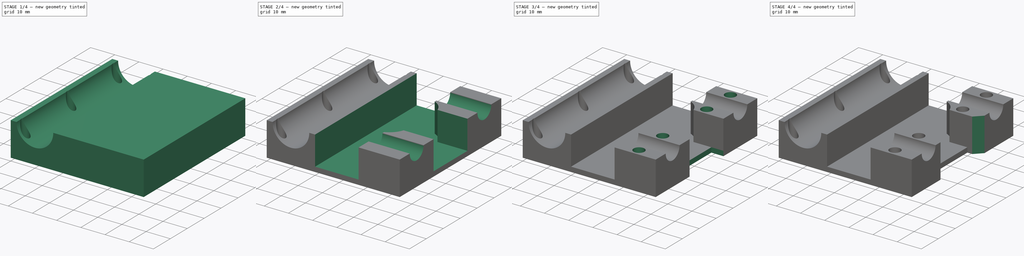
[diagram: build sequence overview — one tinted view per stage of 4, left to right]
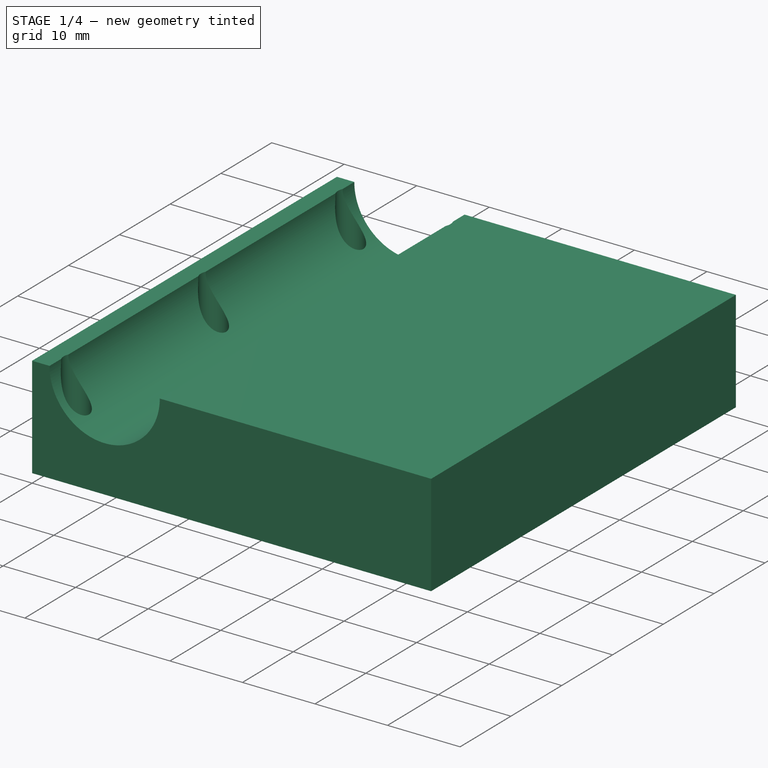
[diagram: stage 1 of 4 — iso view after this stage's code; geometry added in this stage tinted green]
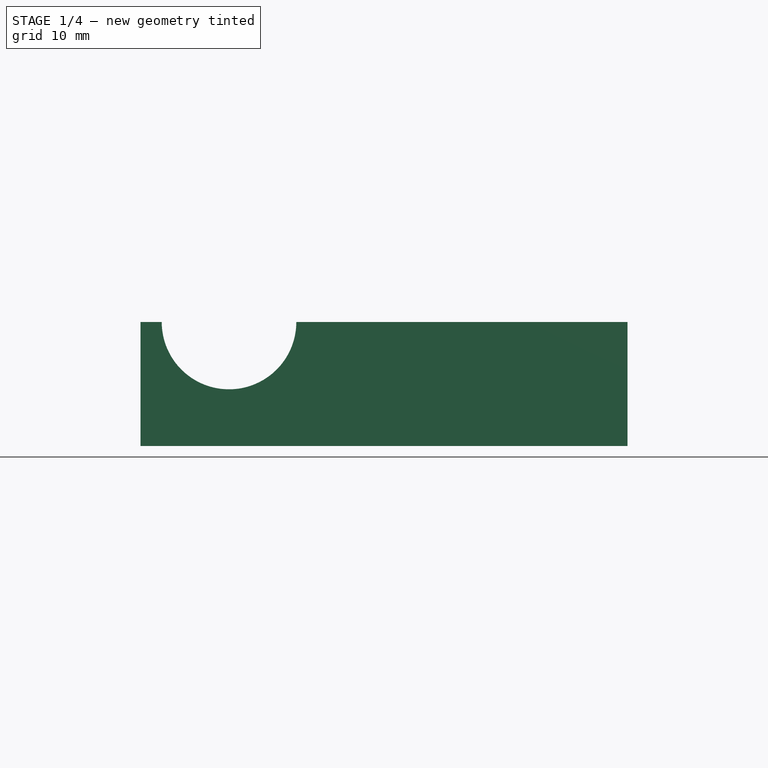
[diagram: stage 1 of 4 — front view after this stage's code; geometry added in this stage tinted green]
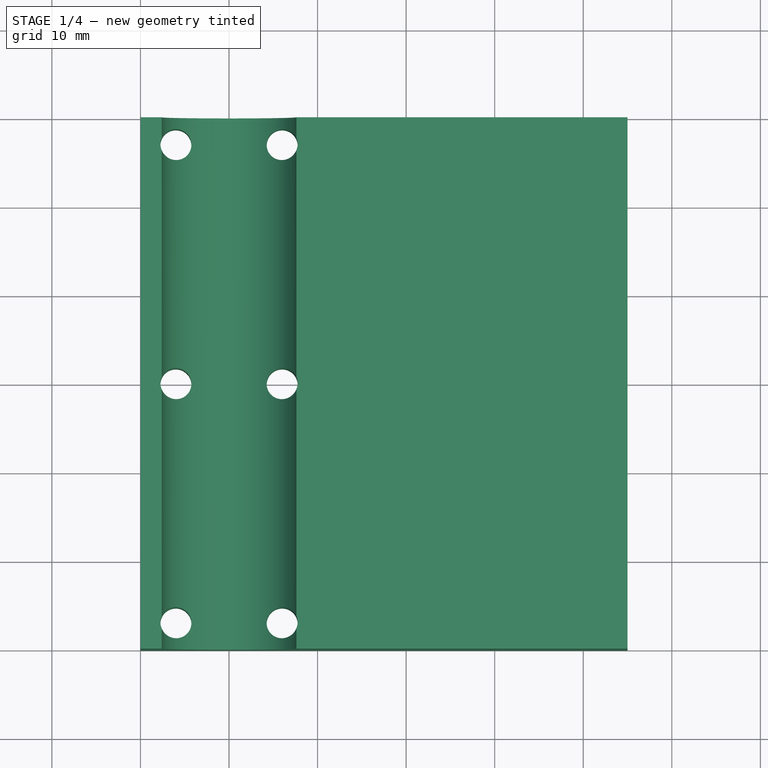
[diagram: stage 1 of 4 — top view after this stage's code; geometry added in this stage tinted green]
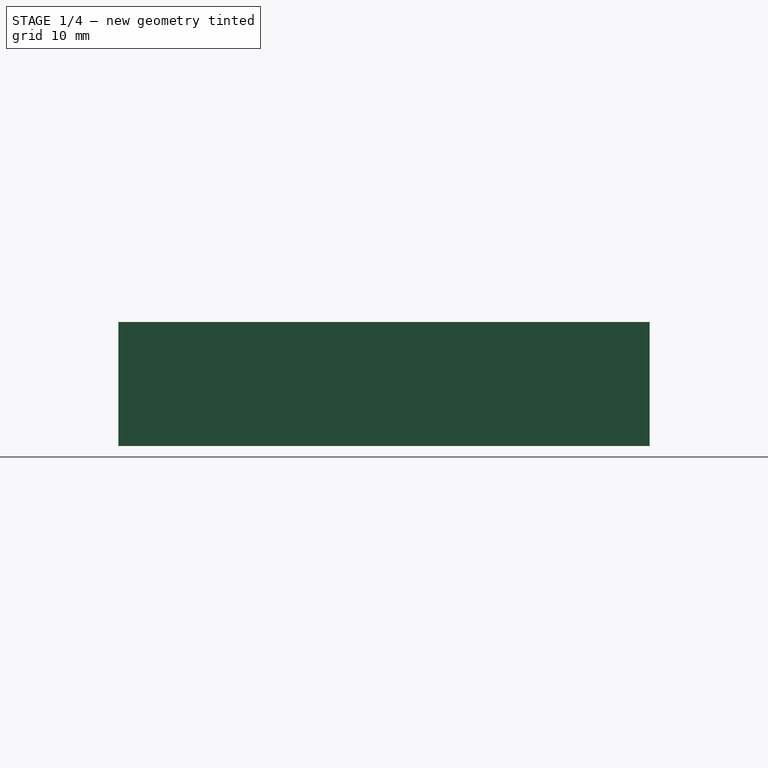
[diagram: stage 1 of 4 — right view after this stage's code; geometry added in this stage tinted green]
FCSTD DOCUMENT  (FreeCAD 0.15R4477 (Git))
Label: XY-block
License: CC-BY 3.0
LicenseURL: http://creativecommons.org/licenses/by/3.0/
objects: Sketcher::SketchObject×9, PartDesign::Pocket×8, PartDesign::Chamfer×2, PartDesign::Pad×1
note: 29 computed .brp shape members not serialized (recipe doc carries the construction recipe); baked Part::Feature solids carry a one-line shape summary decoded from their .brp

FEATURE [Sketcher::SketchObject] Sketch
  sketch-geometry (4):
    g0: LineSegment StartX=-10 StartY=-30 StartZ=0 EndX=45 EndY=-30 EndZ=0
    g1: LineSegment StartX=45 StartY=-30 StartZ=0 EndX=45 EndY=30 EndZ=0
    g2: LineSegment StartX=45 StartY=30 StartZ=0 EndX=-10 EndY=30 EndZ=0
    g3: LineSegment StartX=-10 StartY=30 StartZ=0 EndX=-10 EndY=-30 EndZ=0
  constraints (12):
    c: Coincident(g0,g1)
    c: Coincident(g1,g2)
    c: Coincident(g2,g3)
    c: Coincident(g3,g0)
    c: Horizontal(g0)
    c: Horizontal(g2)
    c: Vertical(g1)
    c: Vertical(g3)
    c: DistanceX(g0) = 55
    c: DistanceY(g1) = 60
    c: DistanceX(g0) = -10
    c: DistanceY(g0) = -30
FEATURE [PartDesign::Pad] Pad
  Length = 14
  Length2 = 100
  Sketch = -> Sketch
  Type = 0
FEATURE [Sketcher::SketchObject] Sketch001
  Placement = pos=(0,-30,0) rot=(1,0,0;1.5708rad)
  Support = -> Pad [Face1]
  sketch-geometry (1):
    g0: Circle CenterX=0 CenterY=14 CenterZ=0 NormalX=0 NormalY=0 NormalZ=1 Radius=7.6
  constraints (3):
    c: Radius(g0) = 7.6
    c: DistanceX(g0) = 0
    c: DistanceY(g0) = 14
FEATURE [PartDesign::Pocket] Pocket  label="Pocket-lm8uu-hole"
  Length = 5
  Sketch = -> Sketch001
  Type = 1
FEATURE [Sketcher::SketchObject] Sketch002
  Placement = pos=(0,0,0) rot=(1,0,0;3.14159rad)
  Support = -> Pocket [Face4]
  sketch-geometry (13):
    g0: Circle CenterX=-6 CenterY=27 CenterZ=0 NormalX=0 NormalY=0 NormalZ=1 Radius=1.75
    g1: Circle CenterX=-6 CenterY=-27 CenterZ=0 NormalX=0 NormalY=0 NormalZ=1 Radius=1.75
    g2: LineSegment [constr] StartX=-6 StartY=27 StartZ=0 EndX=36 EndY=27 EndZ=0
    g3: LineSegment [constr] StartX=36 StartY=27 StartZ=0 EndX=36 EndY=-27 EndZ=0
    g4: LineSegment [constr] StartX=36 StartY=-27 StartZ=0 EndX=-6 EndY=-27 EndZ=0
    g5: Circle CenterX=6 CenterY=27 CenterZ=0 NormalX=0 NormalY=0 NormalZ=1 Radius=1.75
    g6: Circle CenterX=6 CenterY=-27 CenterZ=0 NormalX=0 NormalY=0 NormalZ=1 Radius=1.75
    g7: Circle CenterX=6 CenterY=0 CenterZ=0 NormalX=0 NormalY=0 NormalZ=1 Radius=1.75
    g8: Circle CenterX=-6 CenterY=0 CenterZ=0 NormalX=0 NormalY=0 NormalZ=1 Radius=1.75
    g9: LineSegment [constr] StartX=6 StartY=27 StartZ=0 EndX=6 EndY=-27 EndZ=0
    g10: LineSegment [constr] StartX=-6 StartY=0 StartZ=0 EndX=6 EndY=0 EndZ=0
    g11: LineSegment [constr] StartX=-6 StartY=-27 StartZ=0 EndX=-6 EndY=0 EndZ=0
    g12: LineSegment [constr] StartX=-6 StartY=0 StartZ=0 EndX=-6 EndY=27 EndZ=0
  constraints (32):
    c: Radius(g0) = 1.75
    c: Equal(g0,g1)
    c: Coincident(g2,g3)
    c: Coincident(g3,g4)
    c: Horizontal(g2)
    c: Horizontal(g4)
    c: Vertical(g3)
    c: Coincident(g0,g2)
    c: Coincident(g4,g1)
    c: Equal(g0,g5)
    c: Equal(g0,g6)
    c: Equal(g8,g0)
    c: Equal(g7,g0)
    c: Coincident(g9,g5)
    c: Coincident(g9,g6)
    c: PointOnObject(g10,g9)
    c: Horizontal(g10)
    c: Vertical(g9)
    c: PointOnObject(g5,g2)
    c: PointOnObject(g6,g4)
    c: Coincident(g8,g10)
    c: Coincident(g7,g10)
    c: Coincident(g11,g1)
    c: Coincident(g11,g8)
    c: Vertical(g11)
    c: Coincident(g12,g8)
    c: Coincident(g12,g0)
    c: Vertical(g12)
    c: Equal(g12,g11)
    c: DistanceX(g1,g6) = 12
    c: DistanceX(g-1,g8) = -6
    c: DistanceY(g-1,g1) = -27
FEATURE [PartDesign::Pocket] Pocket001  label="Pocket-mount-holes"
  Length = 5
  Sketch = -> Sketch002
  Type = 1
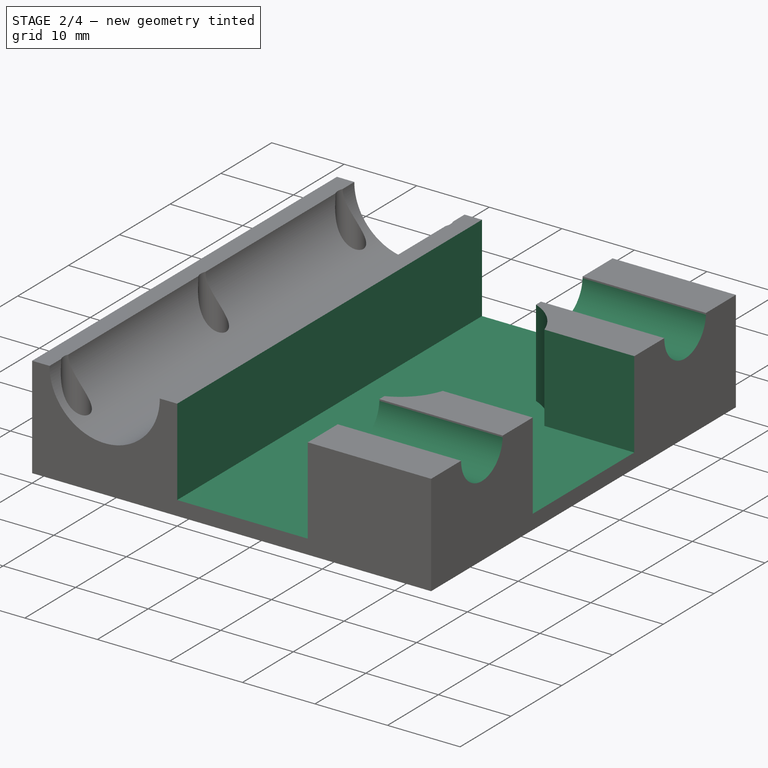
[diagram: stage 2 of 4 — iso view after this stage's code; geometry added in this stage tinted green]
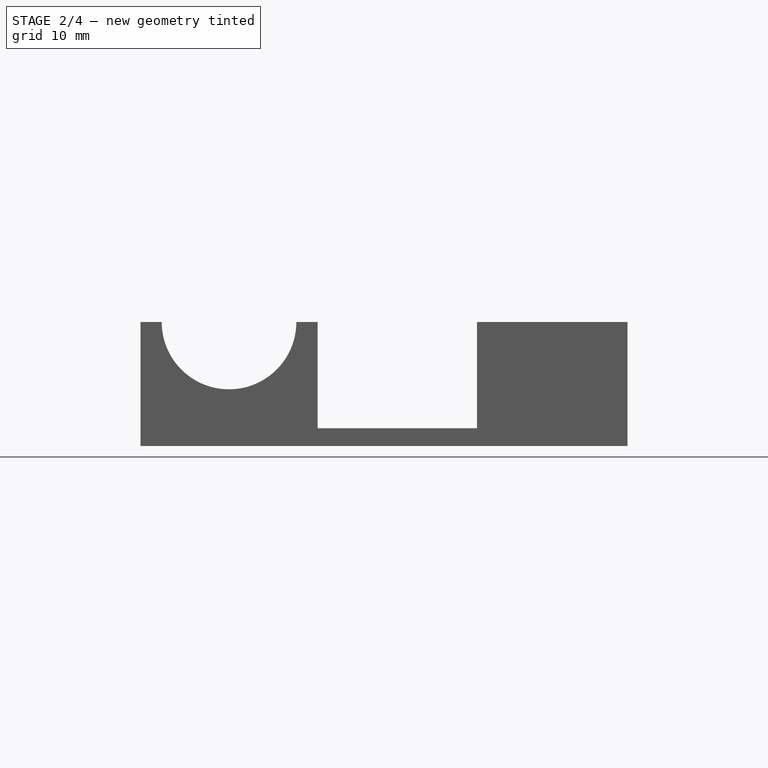
[diagram: stage 2 of 4 — front view after this stage's code; geometry added in this stage tinted green]
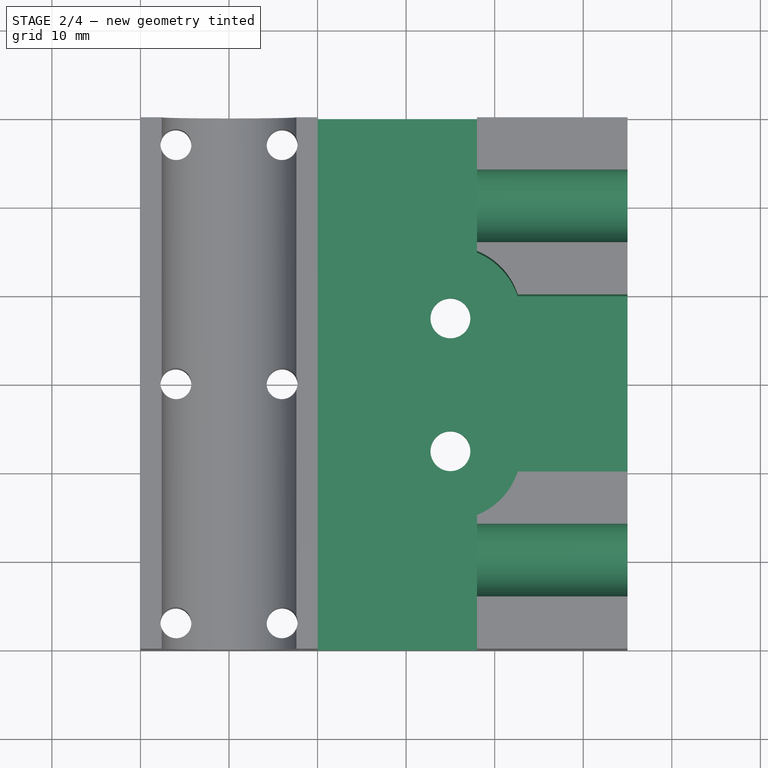
[diagram: stage 2 of 4 — top view after this stage's code; geometry added in this stage tinted green]
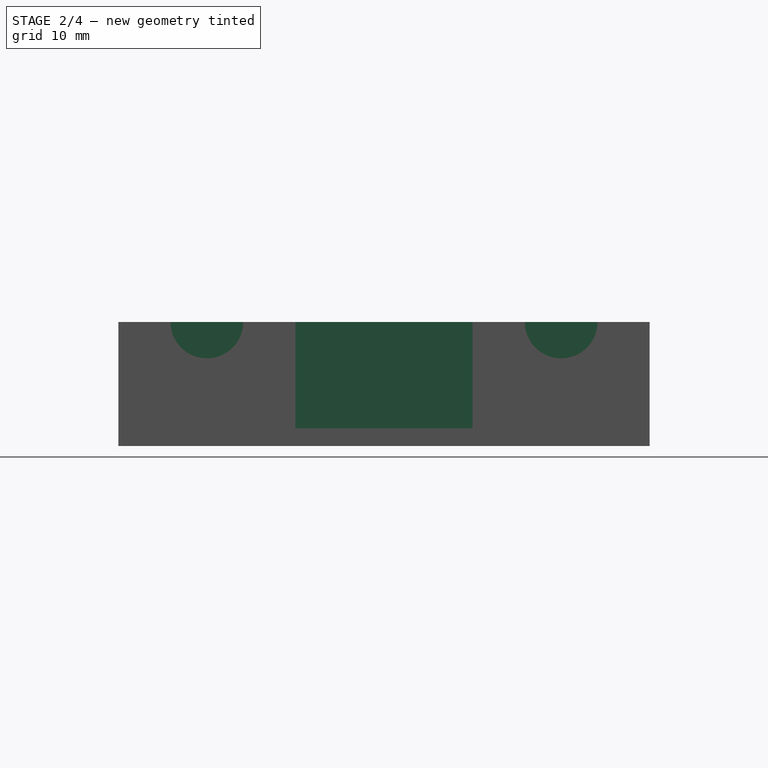
[diagram: stage 2 of 4 — right view after this stage's code; geometry added in this stage tinted green]
FEATURE [Sketcher::SketchObject] Sketch003
  Placement = pos=(0,0,14) rot=(0,0,1;0rad)
  Support = -> Pocket001 [Face5]
  sketch-geometry (10):
    g0: LineSegment StartX=10 StartY=35 StartZ=0 EndX=10 EndY=-35 EndZ=0
    g1: LineSegment StartX=10 StartY=-35 StartZ=0 EndX=28 EndY=-35 EndZ=0
    g2: LineSegment StartX=28 StartY=-35 StartZ=0 EndX=28 EndY=-14.9162 EndZ=0
    g3: LineSegment StartX=32.5993 StartY=-10 StartZ=0 EndX=52.5993 EndY=-10 EndZ=0
    g4: LineSegment StartX=52.5993 StartY=-10 StartZ=0 EndX=52.5993 EndY=10 EndZ=0
    g5: LineSegment StartX=52.5993 StartY=10 StartZ=0 EndX=32.5993 EndY=10 EndZ=0
    g6: LineSegment StartX=28 StartY=14.9162 StartZ=0 EndX=28 EndY=35 EndZ=0
    g7: LineSegment StartX=28 StartY=35 StartZ=0 EndX=10 EndY=35 EndZ=0
    g8: ArcOfCircle CenterX=25 CenterY=7.5 CenterZ=0 NormalX=0 NormalY=0 NormalZ=1 Radius=8 StartAngle=0.317824 EndAngle=1.1864
    g9: ArcOfCircle CenterX=25 CenterY=-7.5 CenterZ=0 NormalX=0 NormalY=0 NormalZ=1 Radius=8 StartAngle=5.09679 EndAngle=5.96536
  constraints (32):
    c: Vertical(g0)
    c: Horizontal(g1)
    c: Coincident(g1,g2)
    c: Vertical(g2)
    c: Horizontal(g3)
    c: Coincident(g3,g4)
    c: Vertical(g4)
    c: Coincident(g4,g5)
    c: Horizontal(g5)
    c: Vertical(g6)
    c: Coincident(g6,g7)
    c: Coincident(g7,g0)
    c: Horizontal(g7)
    c: Coincident(g1,g0)
    c: Equal(g1,g7)
    c: Equal(g6,g2)
    c: Coincident(g9,g3)
    c: Coincident(g9,g2)
    c: Coincident(g8,g5)
    c: Coincident(g8,g6)
    c: Symmetric(g2,g6,g-1)
    c: Symmetric(g3,g5,g-1)
    c: Symmetric(g1,g6,g-1)
    c: DistanceX(g8) = 25
    c: DistanceY(g8) = 7.5
    c: DistanceX(g-1,g0) = 10
    c: DistanceX(g7) = -18
    c: Radius(g8) = 8
    c: Equal(g9,g8)
    c: DistanceY(g-1,g0) = 35
    c: DistanceY(g4) = 20
    c: Distance(g3) = 20
FEATURE [PartDesign::Pocket] Pocket002  label="Pocket-belt-path"
  Length = 12
  Sketch = -> Sketch003
  Type = 0
FEATURE [Sketcher::SketchObject] Sketch004
  Placement = pos=(0,0,0) rot=(1,0,0;3.14159rad)
  Support = -> Pocket002 [Face2]
  sketch-geometry (3):
    g0: Circle CenterX=25 CenterY=7.5 CenterZ=0 NormalX=0 NormalY=0 NormalZ=1 Radius=2.25
    g1: Circle CenterX=25 CenterY=-7.5 CenterZ=0 NormalX=0 NormalY=0 NormalZ=1 Radius=2.25
    g2: LineSegment [constr] StartX=25 StartY=7.5 StartZ=0 EndX=25 EndY=-7.5 EndZ=0
  constraints (8):
    c: Coincident(g2,g0)
    c: Coincident(g2,g1)
    c: Vertical(g2)
    c: DistanceX(g-1,g1) = 25
    c: Equal(g0,g1)
    c: Radius(g0) = 2.25
    c: Distance(g2) = 15
    c: DistanceY(g-1,g0) = 7.5
FEATURE [PartDesign::Pocket] Pocket003  label="Pocket-idler-pulleys-holes"
  Length = 5
  Sketch = -> Sketch004
  Type = 1
FEATURE [Sketcher::SketchObject] Sketch008
  Placement = pos=(45,0,0) rot=(0.57735,0.57735,0.57735;2.0944rad)
  Support = -> Pocket003 [Face1]
  sketch-geometry (2):
    g0: Circle CenterX=-20 CenterY=14 CenterZ=0 NormalX=0 NormalY=0 NormalZ=1 Radius=4.1
    g1: Circle CenterX=20 CenterY=14 CenterZ=0 NormalX=0 NormalY=0 NormalZ=1 Radius=4.1
  constraints (5):
    c: Symmetric(g0,g1,g-2)
    c: Equal(g0,g1)
    c: Radius(g0) = 4.1
    c: DistanceY(g-1,g0) = 14
    c: DistanceX(g0,g1) = 40
FEATURE [PartDesign::Pocket] Pocket005  label="Pocket-x-axis-holes"
  Length = 20
  Sketch = -> Sketch008
  Type = 0
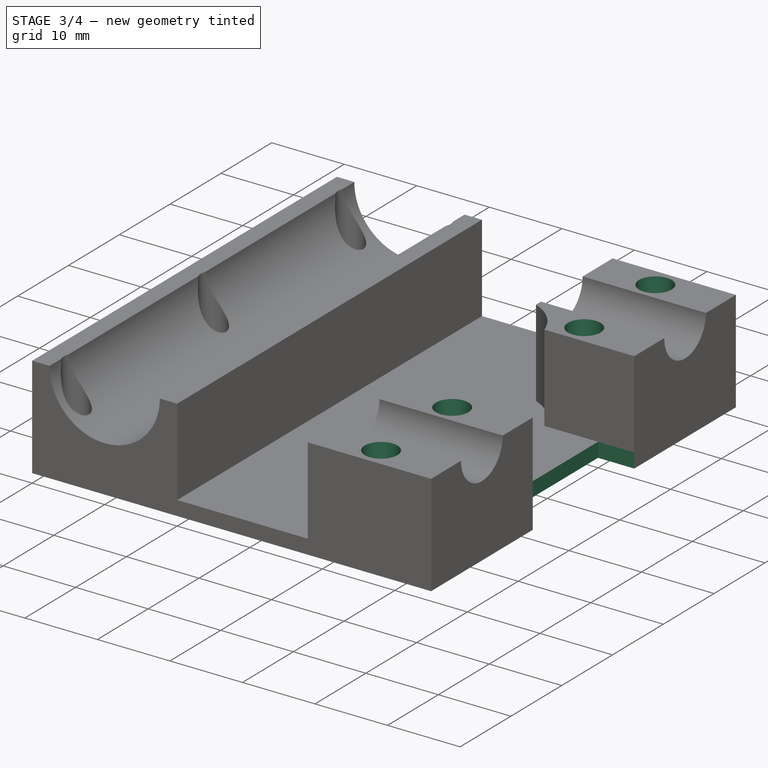
[diagram: stage 3 of 4 — iso view after this stage's code; geometry added in this stage tinted green]
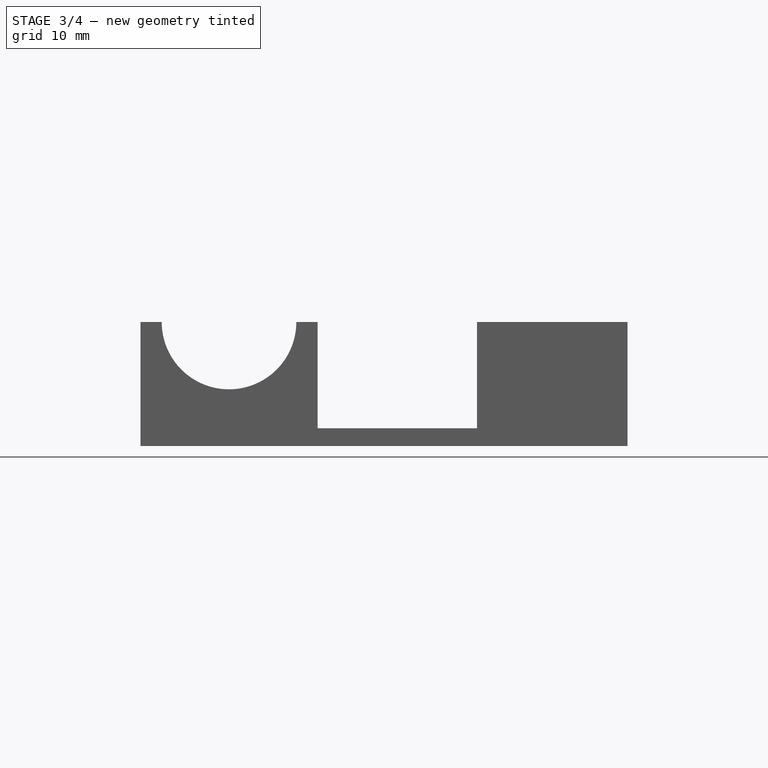
[diagram: stage 3 of 4 — front view after this stage's code; geometry added in this stage tinted green]
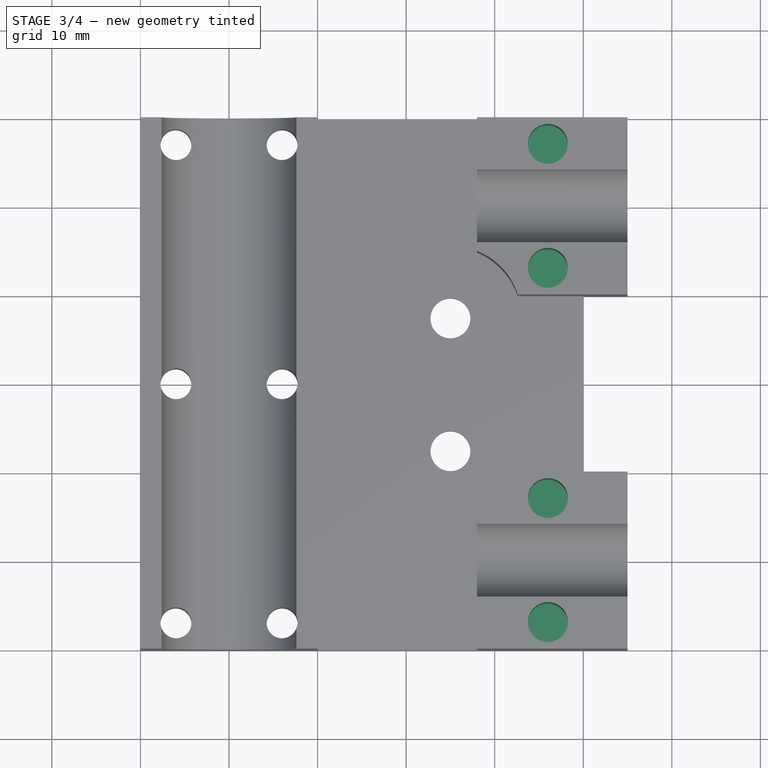
[diagram: stage 3 of 4 — top view after this stage's code; geometry added in this stage tinted green]
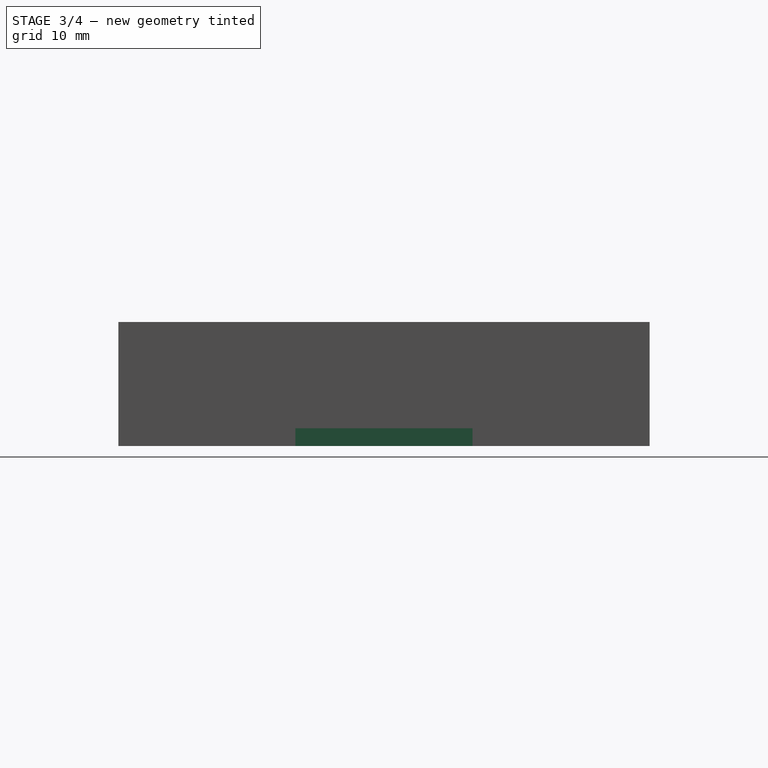
[diagram: stage 3 of 4 — right view after this stage's code; geometry added in this stage tinted green]
FEATURE [Sketcher::SketchObject] Sketch010
  ExternalGeometry = -> [Pocket005]
  Placement = pos=(45,0,0) rot=(0.57735,0.57735,0.57735;2.0944rad)
  Support = -> Pocket005 [Face1]
  sketch-geometry (4):
    g0: LineSegment StartX=-10 StartY=19 StartZ=0 EndX=10 EndY=19 EndZ=0
    g1: LineSegment StartX=10 StartY=19 StartZ=0 EndX=10 EndY=-6 EndZ=0
    g2: LineSegment StartX=10 StartY=-6 StartZ=0 EndX=-10 EndY=-6 EndZ=0
    g3: LineSegment StartX=-10 StartY=-6 StartZ=0 EndX=-10 EndY=19 EndZ=0
  constraints (9):
    c: Coincident(g0,g1)
    c: Coincident(g1,g2)
    c: Coincident(g2,g3)
    c: Coincident(g3,g0)
    c: Horizontal(g0)
    c: Horizontal(g2)
    c: Vertical(g1)
    c: Vertical(g3)
    c: DistanceY(g1) = -25
FEATURE [PartDesign::Pocket] Pocket006  label="Pocket-between-x-axis-holes"
  Length = 5
  Sketch = -> Sketch010
  Type = 0
FEATURE [Sketcher::SketchObject] Sketch011
  ExternalGeometry = -> [Pocket006]
  Placement = pos=(0,0,14) rot=(0,0,1;0rad)
  Support = -> Pocket006 [Face7]
  sketch-geometry (7):
    g0: Circle CenterX=36 CenterY=27 CenterZ=0 NormalX=0 NormalY=0 NormalZ=1 Radius=2.25
    g1: Circle CenterX=36 CenterY=13 CenterZ=0 NormalX=0 NormalY=0 NormalZ=1 Radius=2.25
    g2: Circle CenterX=36 CenterY=-13 CenterZ=0 NormalX=0 NormalY=0 NormalZ=1 Radius=2.25
    g3: Circle CenterX=36 CenterY=-27 CenterZ=0 NormalX=0 NormalY=0 NormalZ=1 Radius=2.25
    g4: LineSegment [constr] StartX=36 StartY=27 StartZ=0 EndX=36 EndY=-27 EndZ=0
    g5: LineSegment [constr] StartX=-6 StartY=27 StartZ=0 EndX=36 EndY=27 EndZ=0
    g6: LineSegment [constr] StartX=-6 StartY=-27 StartZ=0 EndX=36 EndY=-27 EndZ=0
  constraints (18):
    c: Coincident(g4,g0)
    c: Coincident(g4,g3)
    c: Vertical(g4)
    c: Distance(g-3,g0) = 42
    c: Coincident(g5,g-3)
    c: Coincident(g5,g0)
    c: Horizontal(g5)
    c: Distance(g0,g1) = 14
    c: PointOnObject(g1,g4)
    c: PointOnObject(g2,g4)
    c: Coincident(g6,g-4)
    c: Coincident(g6,g3)
    c: Horizontal(g6)
    c: Distance(g3,g2) = 14
    c: Radius(g3) = 2.25
    c: Equal(g3,g2)
    c: Equal(g2,g1)
    c: Equal(g1,g0)
FEATURE [PartDesign::Pocket] Pocket007
  Length = 10
  Sketch = -> Sketch011
  Type = 0
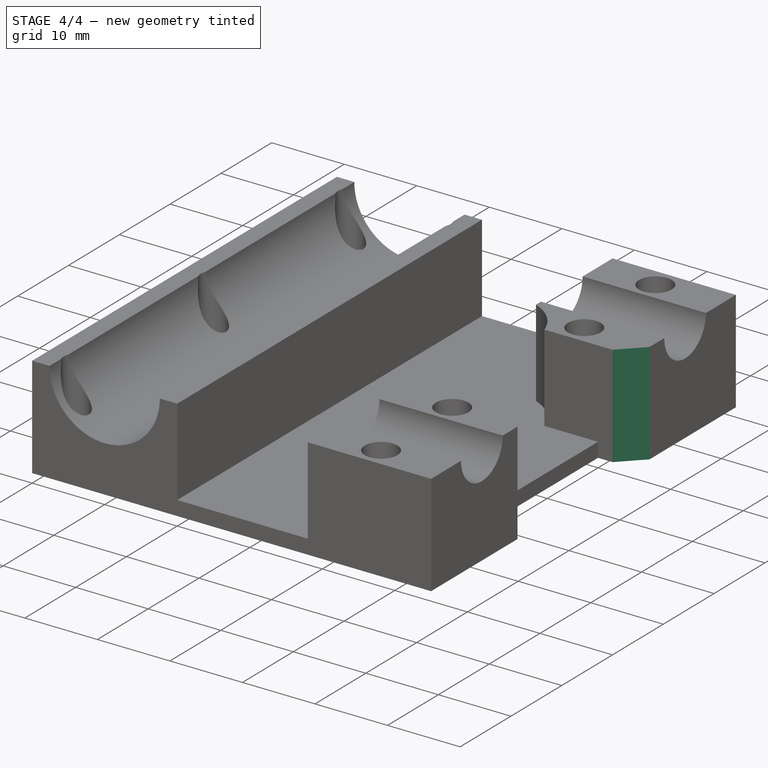
[diagram: stage 4 of 4 — iso view after this stage's code; geometry added in this stage tinted green]
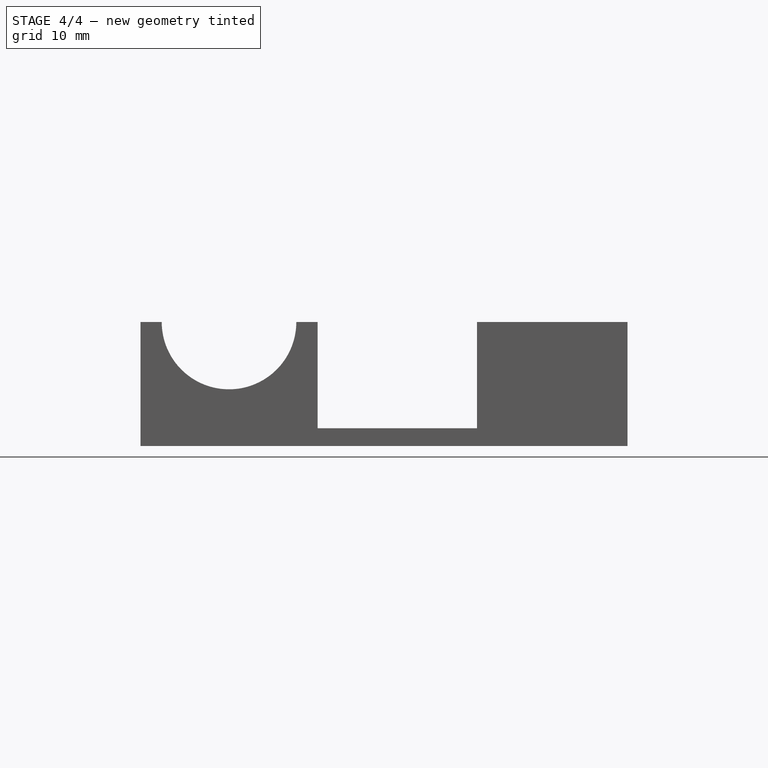
[diagram: stage 4 of 4 — front view after this stage's code; geometry added in this stage tinted green]
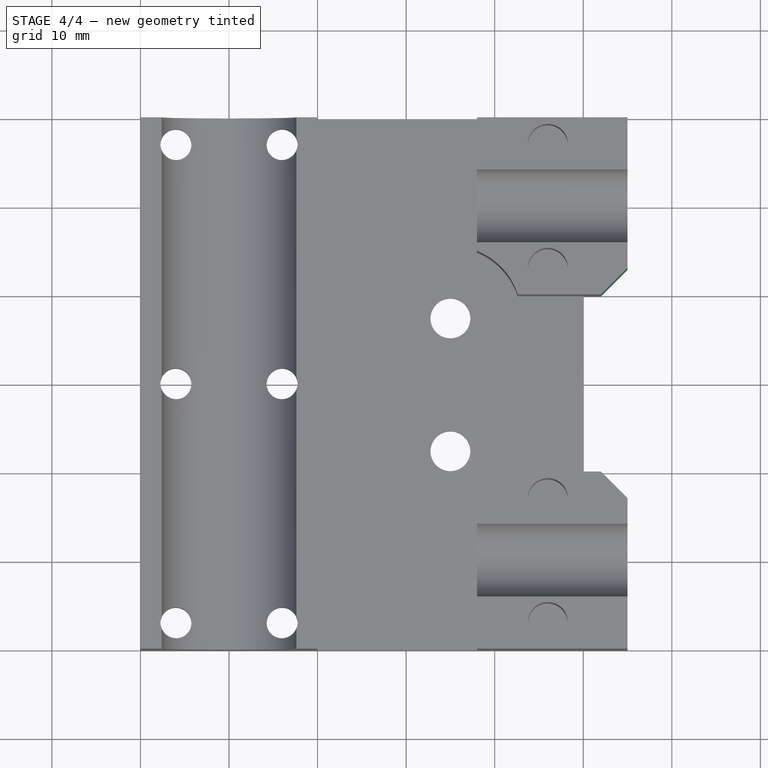
[diagram: stage 4 of 4 — top view after this stage's code; geometry added in this stage tinted green]
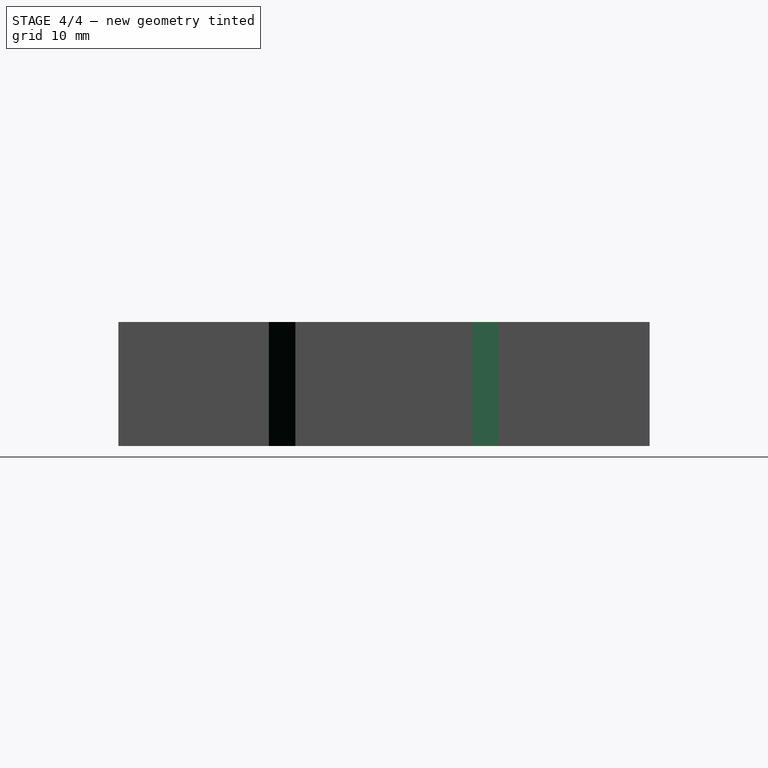
[diagram: stage 4 of 4 — right view after this stage's code; geometry added in this stage tinted green]
FEATURE [PartDesign::Chamfer] Chamfer
  Base = -> Pocket007 [Edge3,Edge2]
  Size = 3
FEATURE [PartDesign::Chamfer] Chamfer001  label="XY-block"
  Base = -> Chamfer [Edge65,Edge60]
  Size = 3
FEATURE [Sketcher::SketchObject] Sketch012
  ExternalGeometry = -> [Chamfer001]
  Placement = pos=(0,0,0) rot=(1,0,0;3.14159rad)
  Support = -> Chamfer001 [Face1]
  sketch-geometry (42):
    g0: LineSegment StartX=-4.41228 StartY=29.75 StartZ=0 EndX=-7.58772 EndY=29.75 EndZ=0
    g1: LineSegment StartX=-7.58772 StartY=29.75 StartZ=0 EndX=-9.17543 EndY=27 EndZ=0
    g2: LineSegment StartX=-9.17543 StartY=27 StartZ=0 EndX=-7.58772 EndY=24.25 EndZ=0
    g3: LineSegment StartX=-7.58772 StartY=24.25 StartZ=0 EndX=-4.41228 EndY=24.25 EndZ=0
    g4: LineSegment StartX=-4.41228 StartY=24.25 StartZ=0 EndX=-2.82457 EndY=27 EndZ=0
    g5: LineSegment StartX=-2.82457 StartY=27 StartZ=0 EndX=-4.41228 EndY=29.75 EndZ=0
    g6: Circle [constr] CenterX=-6 CenterY=27 CenterZ=0 NormalX=0 NormalY=0 NormalZ=1 Radius=3.17543
    g7: LineSegment StartX=7.58772 StartY=29.75 StartZ=0 EndX=4.41228 EndY=29.75 EndZ=0
    g8: LineSegment StartX=4.41228 StartY=29.75 StartZ=0 EndX=2.82457 EndY=27 EndZ=0
    g9: LineSegment StartX=2.82457 StartY=27 StartZ=0 EndX=4.41228 EndY=24.25 EndZ=0
    g10: LineSegment StartX=4.41228 StartY=24.25 StartZ=0 EndX=7.58772 EndY=24.25 EndZ=0
    g11: LineSegment StartX=7.58772 StartY=24.25 StartZ=0 EndX=9.17543 EndY=27 EndZ=0
    g12: LineSegment StartX=9.17543 StartY=27 StartZ=0 EndX=7.58772 EndY=29.75 EndZ=0
    g13: Circle [constr] CenterX=6 CenterY=27 CenterZ=0 NormalX=0 NormalY=0 NormalZ=1 Radius=3.17543
    g14: LineSegment StartX=-4.41228 StartY=2.75 StartZ=0 EndX=-7.58772 EndY=2.75 EndZ=0
    g15: LineSegment StartX=-7.58772 StartY=2.75 StartZ=0 EndX=-9.17543 EndY=0 EndZ=0
    g16: LineSegment StartX=-9.17543 StartY=0 StartZ=0 EndX=-7.58772 EndY=-2.75 EndZ=0
    g17: LineSegment StartX=-7.58772 StartY=-2.75 StartZ=0 EndX=-4.41228 EndY=-2.75 EndZ=0
    g18: LineSegment StartX=-4.41228 StartY=-2.75 StartZ=0 EndX=-2.82457 EndY=0 EndZ=0
    g19: LineSegment StartX=-2.82457 StartY=0 StartZ=0 EndX=-4.41228 EndY=2.75 EndZ=0
    g20: Circle [constr] CenterX=-6 CenterY=0 CenterZ=0 NormalX=0 NormalY=0 NormalZ=1 Radius=3.17543
    g21: LineSegment StartX=7.58772 StartY=2.75 StartZ=0 EndX=4.41228 EndY=2.75 EndZ=0
    g22: LineSegment StartX=4.41228 StartY=2.75 StartZ=0 EndX=2.82457 EndY=0 EndZ=0
    g23: LineSegment StartX=2.82457 StartY=0 StartZ=0 EndX=4.41228 EndY=-2.75 EndZ=0
    g24: LineSegment StartX=4.41228 StartY=-2.75 StartZ=0 EndX=7.58772 EndY=-2.75 EndZ=0
    g25: LineSegment StartX=7.58772 StartY=-2.75 StartZ=0 EndX=9.17543 EndY=0 EndZ=0
    g26: LineSegment StartX=9.17543 StartY=0 StartZ=0 EndX=7.58772 EndY=2.75 EndZ=0
    g27: Circle [constr] CenterX=6 CenterY=0 CenterZ=0 NormalX=0 NormalY=0 NormalZ=1 Radius=3.17543
    g28: LineSegment StartX=-4.41228 StartY=-24.25 StartZ=0 EndX=-7.58772 EndY=-24.25 EndZ=0
    g29: LineSegment StartX=-7.58772 StartY=-24.25 StartZ=0 EndX=-9.17543 EndY=-27 EndZ=0
    g30: LineSegment StartX=-9.17543 StartY=-27 StartZ=0 EndX=-7.58772 EndY=-29.75 EndZ=0
    g31: LineSegment StartX=-7.58772 StartY=-29.75 StartZ=0 EndX=-4.41228 EndY=-29.75 EndZ=0
    g32: LineSegment StartX=-4.41228 StartY=-29.75 StartZ=0 EndX=-2.82457 EndY=-27 EndZ=0
    g33: LineSegment StartX=-2.82457 StartY=-27 StartZ=0 EndX=-4.41228 EndY=-24.25 EndZ=0
    g34: Circle [constr] CenterX=-6 CenterY=-27 CenterZ=0 NormalX=0 NormalY=0 NormalZ=1 Radius=3.17543
    g35: LineSegment StartX=7.58772 StartY=-24.25 StartZ=0 EndX=4.41228 EndY=-24.25 EndZ=0
    g36: LineSegment StartX=4.41228 StartY=-24.25 StartZ=0 EndX=2.82457 EndY=-27 EndZ=0
    g37: LineSegment StartX=2.82457 StartY=-27 StartZ=0 EndX=4.41228 EndY=-29.75 EndZ=0
    g38: LineSegment StartX=4.41228 StartY=-29.75 StartZ=0 EndX=7.58772 EndY=-29.75 EndZ=0
    g39: LineSegment StartX=7.58772 StartY=-29.75 StartZ=0 EndX=9.17543 EndY=-27 EndZ=0
    g40: LineSegment StartX=9.17543 StartY=-27 StartZ=0 EndX=7.58772 EndY=-24.25 EndZ=0
    g41: Circle [constr] CenterX=6 CenterY=-27 CenterZ=0 NormalX=0 NormalY=0 NormalZ=1 Radius=3.17543
  constraints (100):
    c: Coincident(g0,g1)
    c: Coincident(g1,g2)
    c: Coincident(g2,g3)
    c: Coincident(g3,g4)
    c: Coincident(g4,g5)
    c: Coincident(g5,g0)
    c: Equal(g0, g1-g5) x5
    c: PointOnObject(g0,g6)
    c: PointOnObject(g1,g6)
    c: PointOnObject(g2,g6)
    c: PointOnObject(g3,g6)
    c: PointOnObject(g4,g6)
    c: PointOnObject(g5,g6)
    c: Coincident(g3,g-3)
    c: Horizontal(g0)
    c: Distance(g5) = 3.17543
    c: Coincident(g6,g-3)
    c: Coincident(g7,g8)
    c: Coincident(g8,g9)
    c: Coincident(g9,g10)
    c: Coincident(g10,g11)
    c: Coincident(g11,g12)
    c: Coincident(g12,g7)
    c: Equal(g7, g8-g12) x5
    c: PointOnObject(g7,g13)
    c: PointOnObject(g8,g13)
    c: PointOnObject(g9,g13)
    c: PointOnObject(g10,g13)
    c: PointOnObject(g11,g13)
    c: PointOnObject(g12,g13)
    c: Coincident(g10,g-4)
    c: Coincident(g14,g15)
    c: Coincident(g15,g16)
    c: Coincident(g16,g17)
    c: Coincident(g17,g18)
    c: Coincident(g18,g19)
    c: Coincident(g19,g14)
    c: Equal(g14, g15-g19) x5
    c: PointOnObject(g14,g20)
    c: PointOnObject(g15,g20)
    c: PointOnObject(g16,g20)
    c: PointOnObject(g17,g20)
    c: PointOnObject(g18,g20)
    c: PointOnObject(g19,g20)
    c: Coincident(g17,g-5)
    c: Coincident(g21,g22)
    c: Coincident(g22,g23)
    c: Coincident(g23,g24)
    c: Coincident(g24,g25)
    c: Coincident(g25,g26)
    c: Coincident(g26,g21)
    c: Equal(g21, g22-g26) x5
    c: PointOnObject(g21,g27)
    c: PointOnObject(g22,g27)
    c: PointOnObject(g23,g27)
    c: PointOnObject(g24,g27)
    c: PointOnObject(g25,g27)
    c: PointOnObject(g26,g27)
    c: Coincident(g24,g-6)
    c: Coincident(g28,g29)
    c: Coincident(g29,g30)
    c: Coincident(g30,g31)
    c: Coincident(g31,g32)
    c: Coincident(g32,g33)
    c: Coincident(g33,g28)
    c: Equal(g28, g29-g33) x5
    c: PointOnObject(g28,g34)
    c: PointOnObject(g29,g34)
    c: PointOnObject(g30,g34)
    c: PointOnObject(g31,g34)
    c: PointOnObject(g32,g34)
    c: PointOnObject(g33,g34)
    c: Coincident(g34,g-7)
    c: Coincident(g35,g36)
    c: Coincident(g36,g37)
    c: Coincident(g37,g38)
    c: Coincident(g38,g39)
    c: Coincident(g39,g40)
    c: Coincident(g40,g35)
    c: Equal(g35, g36-g40) x5
    c: PointOnObject(g35,g41)
    c: PointOnObject(g36,g41)
    c: PointOnObject(g37,g41)
    c: PointOnObject(g38,g41)
    c: PointOnObject(g39,g41)
    c: PointOnObject(g40,g41)
    c: Horizontal(g28)
    c: Horizontal(g35)
    c: Horizontal(g14)
    c: Horizontal(g21)
    c: Horizontal(g7)
    c: Equal(g6,g13)
    c: Equal(g13,g20)
    c: Equal(g20,g27)
    c: Equal(g27,g34)
    c: Equal(g34,g41)
    c: Coincident(g-6,g27)
    c: Coincident(g20,g-5)
    c: Coincident(g13,g-4)
    c: Coincident(g41,g-8)
FEATURE [PartDesign::Pocket] Pocket008
  Length = 4.5
  Sketch = -> Sketch012
  Type = 0
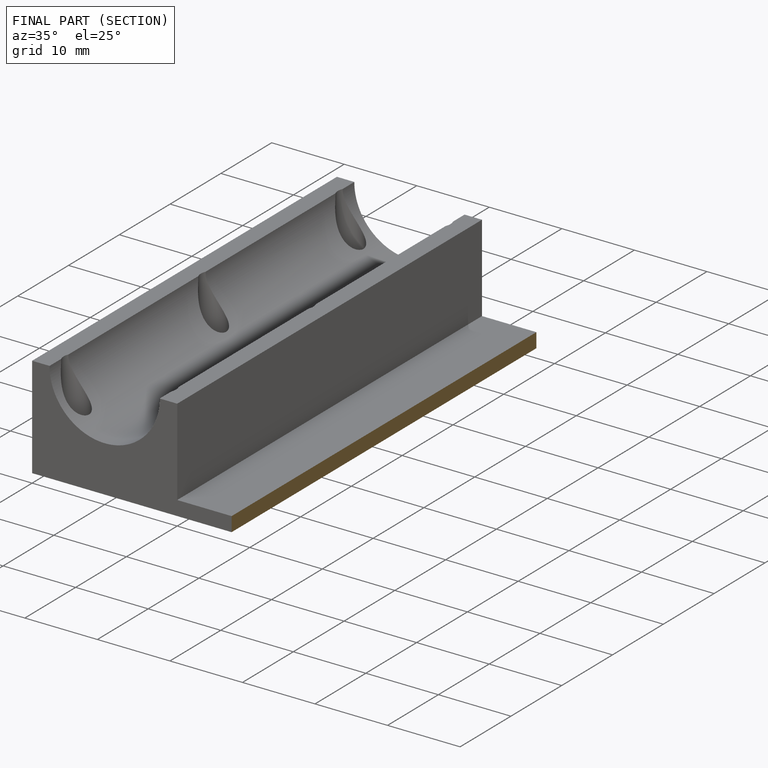
[diagram: finished part — half-section view (interior)]
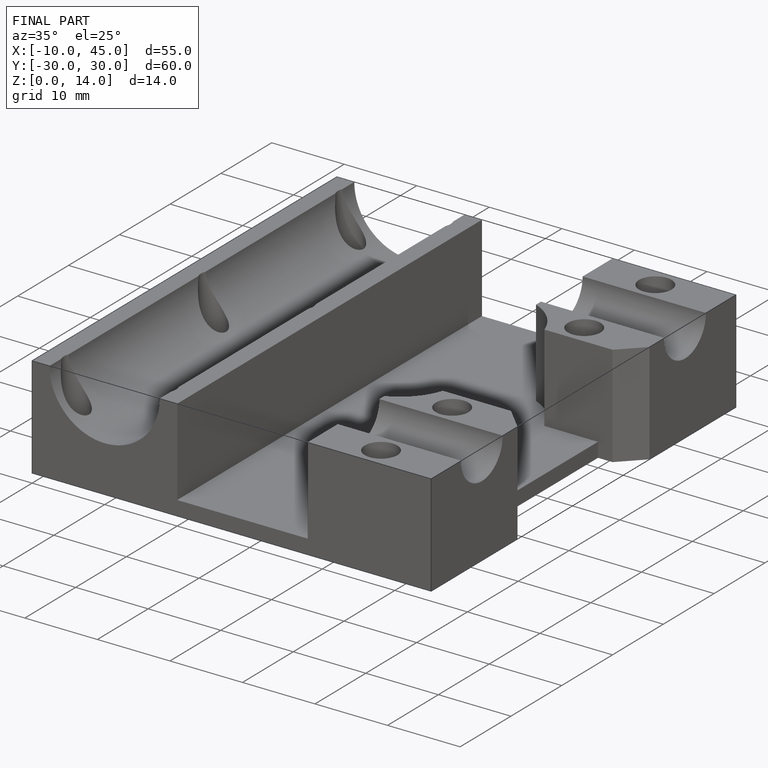
[diagram: finished part — iso view with bounding-box wireframe]
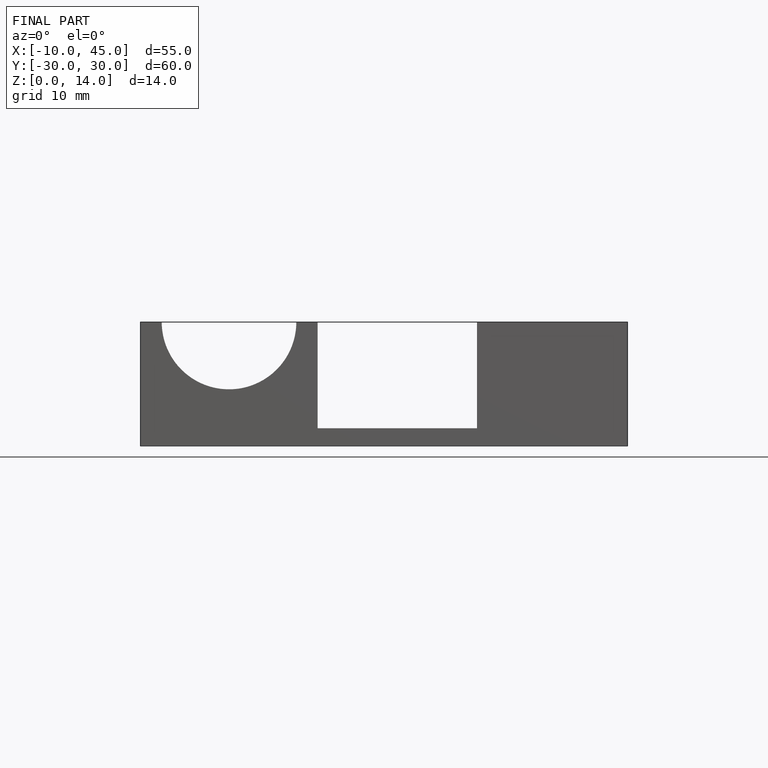
[diagram: finished part — front view with bounding-box wireframe]
